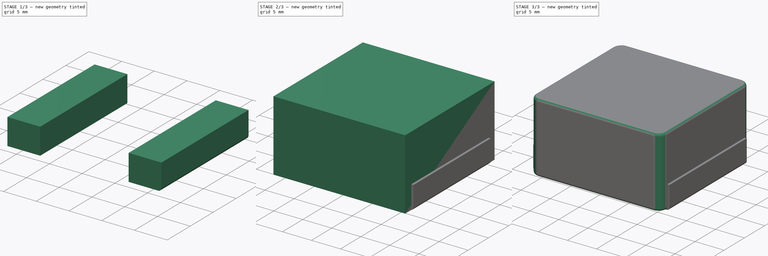
[diagram: build sequence overview — one tinted view per stage of 3, left to right]
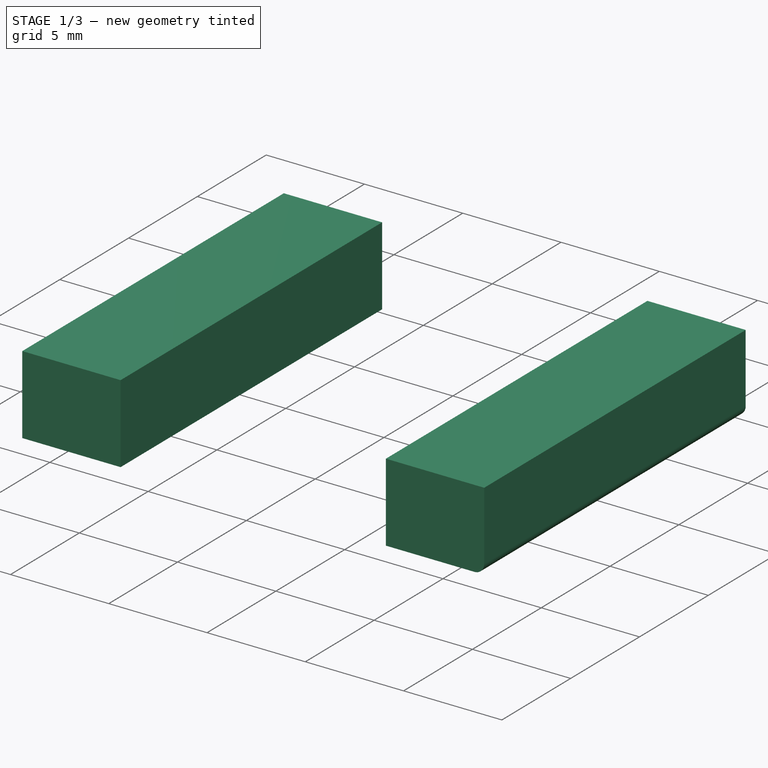
[diagram: stage 1 of 3 — iso view after this stage's code; geometry added in this stage tinted green]
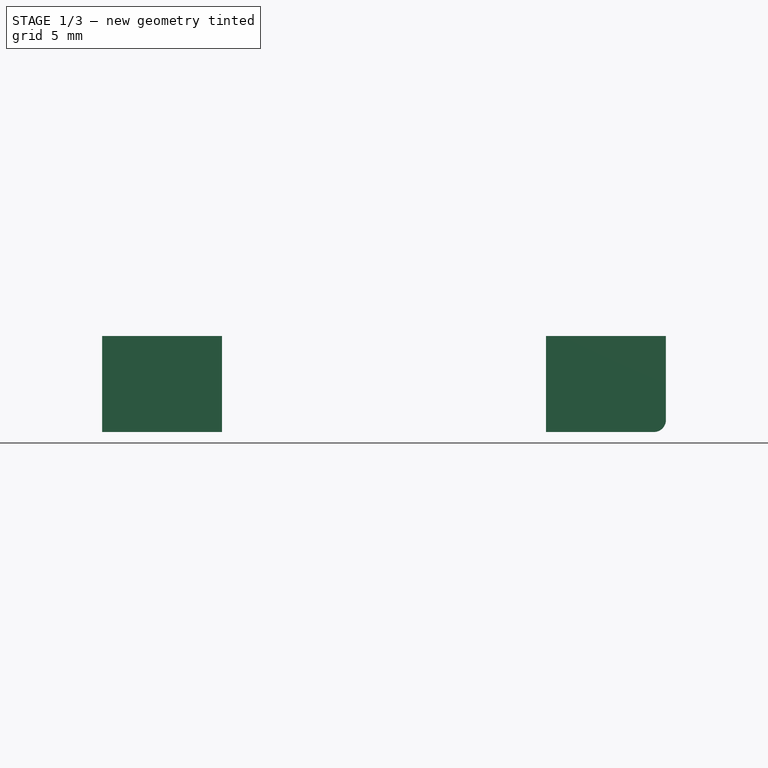
[diagram: stage 1 of 3 — front view after this stage's code; geometry added in this stage tinted green]
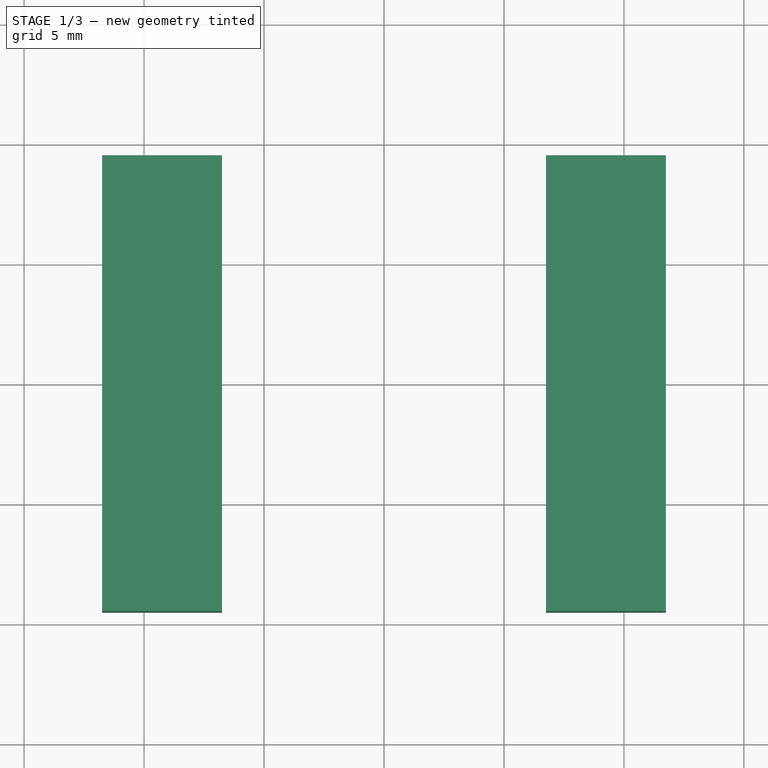
[diagram: stage 1 of 3 — top view after this stage's code; geometry added in this stage tinted green]
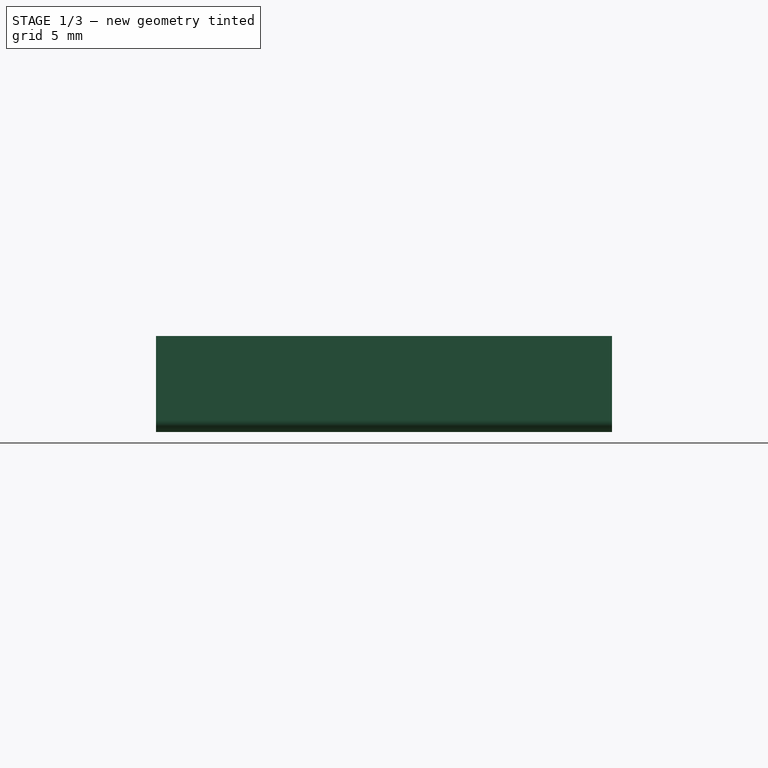
[diagram: stage 1 of 3 — right view after this stage's code; geometry added in this stage tinted green]
FCSTD DOCUMENT  (FreeCAD 0.17R13171 (Git))
Label: L_Bourns_SRP2313AA
License: All rights reserved
LicenseURL: http://en.wikipedia.org/wiki/All_rights_reserved
objects: PartDesign::Fillet×5, Sketcher::SketchObject×3, PartDesign::Pad×3, PartDesign::Body×3, Part::Feature×1
note: 18 computed .brp shape members not serialized (recipe doc carries the construction recipe); baked Part::Feature solids carry a one-line shape summary decoded from their .brp

FEATURE [Sketcher::SketchObject] Sketch001
  MapMode = 5
  Support = -> [XY_Plane001]
  sketch-geometry (4):
    g0: LineSegment StartX=-11.75 StartY=9.5 StartZ=0 EndX=-6.75 EndY=9.5 EndZ=0
    g1: LineSegment StartX=-6.75 StartY=9.5 StartZ=0 EndX=-6.75 EndY=-9.5 EndZ=0
    g2: LineSegment StartX=-6.75 StartY=-9.5 StartZ=0 EndX=-11.75 EndY=-9.5 EndZ=0
    g3: LineSegment StartX=-11.75 StartY=-9.5 StartZ=0 EndX=-11.75 EndY=9.5 EndZ=0
  constraints (12):
    c: Coincident(g0,g1)
    c: Coincident(g1,g2)
    c: Coincident(g2,g3)
    c: Coincident(g3,g0)
    c: Horizontal(g0)
    c: Horizontal(g2)
    c: Vertical(g1)
    c: Vertical(g3)
    c: Distance(g0,g-2) = 6.75
    c: Distance(g0) = 5
    c: Distance(g3) = 19
    c: Symmetric(g0,g1,g-1)
FEATURE [PartDesign::Pad] Pad001  label="Pad1"
  Length = 4
  Length2 = 100
  Profile = -> Sketch001
  Type = 0
FEATURE [Sketcher::SketchObject] Sketch002
  MapMode = 5
  Support = -> [XY_Plane002]
  sketch-geometry (4):
    g0: LineSegment StartX=6.75 StartY=9.5 StartZ=0 EndX=11.75 EndY=9.5 EndZ=0
    g1: LineSegment StartX=11.75 StartY=9.5 StartZ=0 EndX=11.75 EndY=-9.5 EndZ=0
    g2: LineSegment StartX=11.75 StartY=-9.5 StartZ=0 EndX=6.75 EndY=-9.5 EndZ=0
    g3: LineSegment StartX=6.75 StartY=-9.5 StartZ=0 EndX=6.75 EndY=9.5 EndZ=0
  constraints (12):
    c: Coincident(g0,g1)
    c: Coincident(g1,g2)
    c: Coincident(g2,g3)
    c: Coincident(g3,g0)
    c: Horizontal(g0)
    c: Horizontal(g2)
    c: Vertical(g1)
    c: Vertical(g3)
    c: Distance(g0) = 5
    c: Distance(g1) = 19
    c: Symmetric(g0,g1,g-1)
    c: DistanceX(g-2,g0) = 6.75
FEATURE [PartDesign::Pad] Pad002
  Length = 4
  Length2 = 100
  Profile = -> Sketch002
  Type = 0
FEATURE [PartDesign::Body] Body001  label="Pad_1"
  Group = -> [Sketch001,Pad001,Fillet003]
  Origin = -> Origin001
  Tip = -> Fillet003
FEATURE [PartDesign::Fillet] Fillet004
  Base = -> Pad002 [Edge6]
  BaseFeature = -> Pad002
  Radius = 0.5
FEATURE [PartDesign::Body] Body002  label="Pad_2"
  Group = -> [Sketch002,Pad002,Fillet004]
  Origin = -> Origin002
  Tip = -> Fillet004
FEATURE [Part::Feature] Shape  label="L_Bourns_SRP2313AA"
  shape: bbox 23.5 x 22.25 x 12.6 mm, 38 faces (baked)
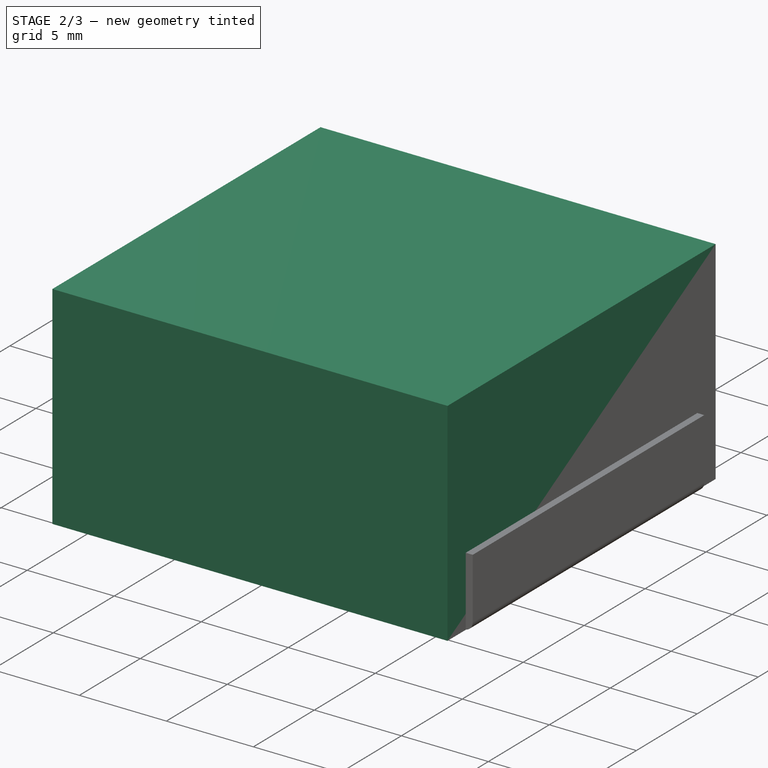
[diagram: stage 2 of 3 — iso view after this stage's code; geometry added in this stage tinted green]
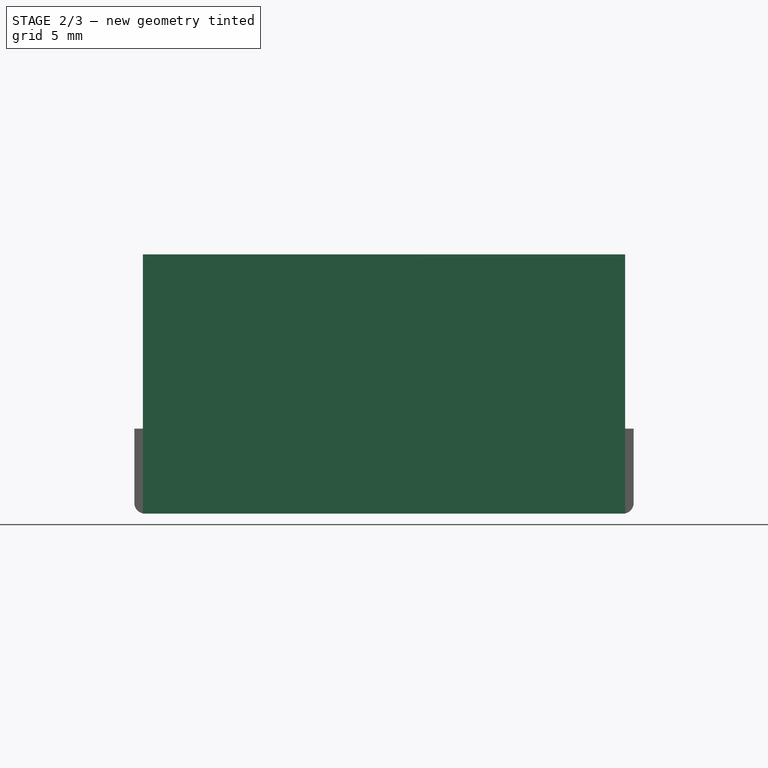
[diagram: stage 2 of 3 — front view after this stage's code; geometry added in this stage tinted green]
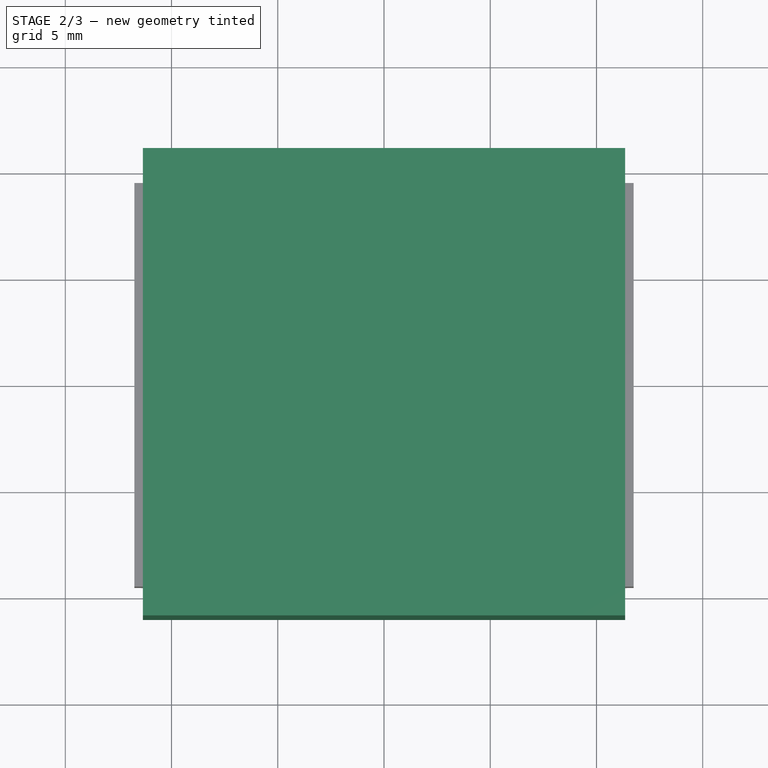
[diagram: stage 2 of 3 — top view after this stage's code; geometry added in this stage tinted green]
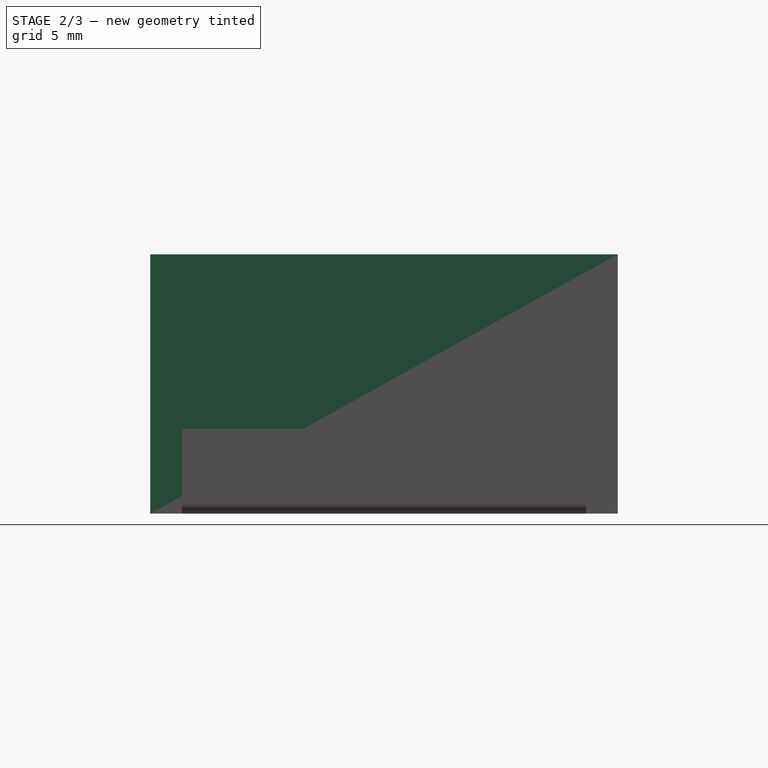
[diagram: stage 2 of 3 — right view after this stage's code; geometry added in this stage tinted green]
FEATURE [Sketcher::SketchObject] Sketch
  MapMode = 5
  Support = -> [XY_Plane]
  sketch-geometry (4):
    g0: LineSegment StartX=-11.35 StartY=11 StartZ=0 EndX=11.35 EndY=11 EndZ=0
    g1: LineSegment StartX=11.35 StartY=11 StartZ=0 EndX=11.35 EndY=-11 EndZ=0
    g2: LineSegment StartX=11.35 StartY=-11 StartZ=0 EndX=-11.35 EndY=-11 EndZ=0
    g3: LineSegment StartX=-11.35 StartY=-11 StartZ=0 EndX=-11.35 EndY=11 EndZ=0
  constraints (12):
    c: Coincident(g0,g1)
    c: Coincident(g1,g2)
    c: Coincident(g2,g3)
    c: Coincident(g3,g0)
    c: Horizontal(g0)
    c: Horizontal(g2)
    c: Vertical(g1)
    c: Vertical(g3)
    c: Distance(g0) = 22.7
    c: Symmetric(g0,g0,g-2)
    c: Symmetric(g0,g1,g-1)
    c: Distance(g1) = 22
FEATURE [PartDesign::Pad] Pad
  Length = 12.2
  Length2 = 100
  Profile = -> Sketch
  Type = 0
FEATURE [PartDesign::Body] Body
  Group = -> [Sketch,Pad,Fillet,Fillet001,Fillet002]
  Origin = -> Origin
  Placement = pos=(0,0,0.4) rot=(0,0,1;0rad)
  Tip = -> Fillet002
FEATURE [PartDesign::Fillet] Fillet003
  Base = -> Pad001 [Edge11]
  BaseFeature = -> Pad001
  Radius = 0.5
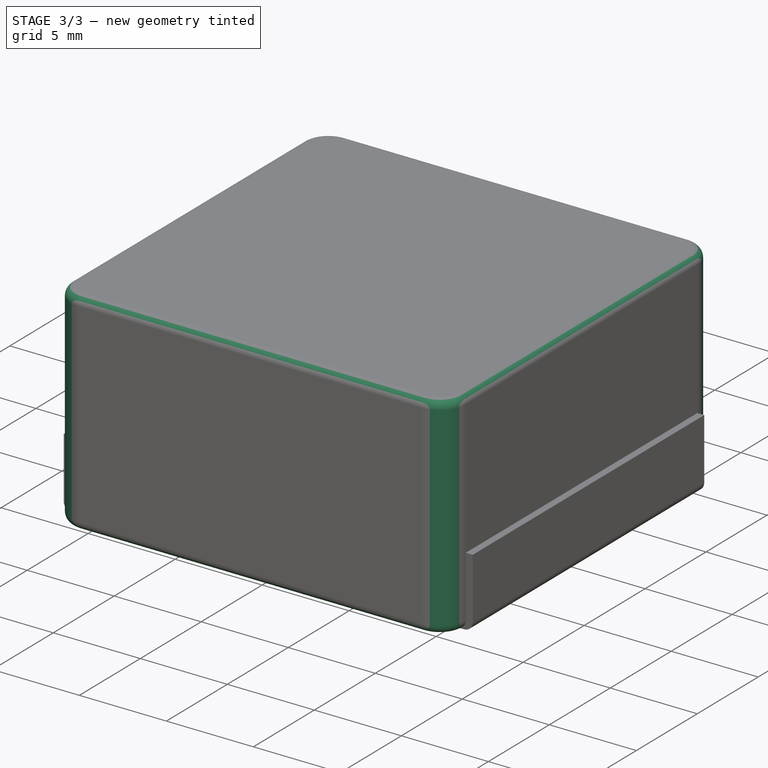
[diagram: stage 3 of 3 — iso view after this stage's code; geometry added in this stage tinted green]
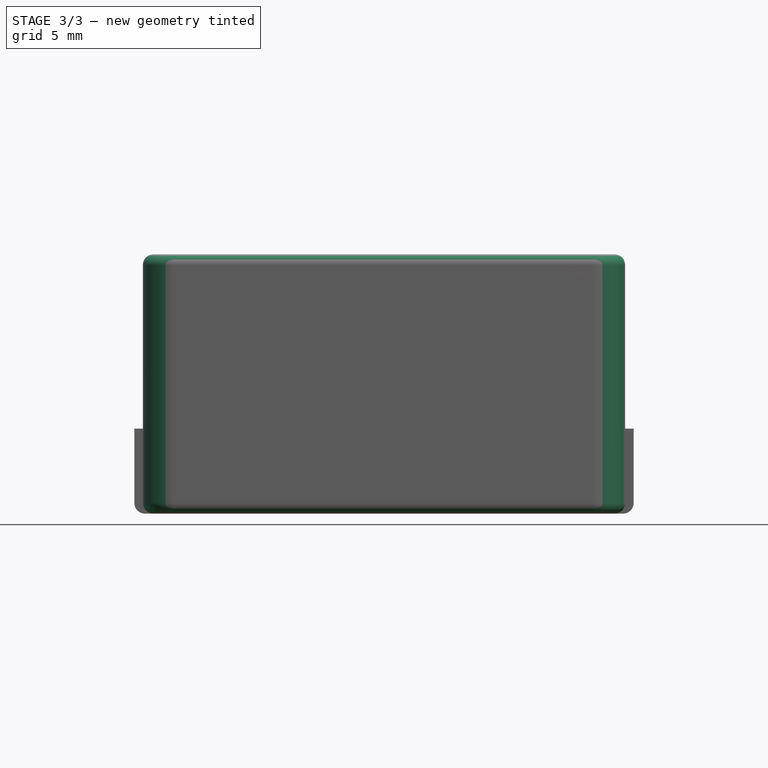
[diagram: stage 3 of 3 — front view after this stage's code; geometry added in this stage tinted green]
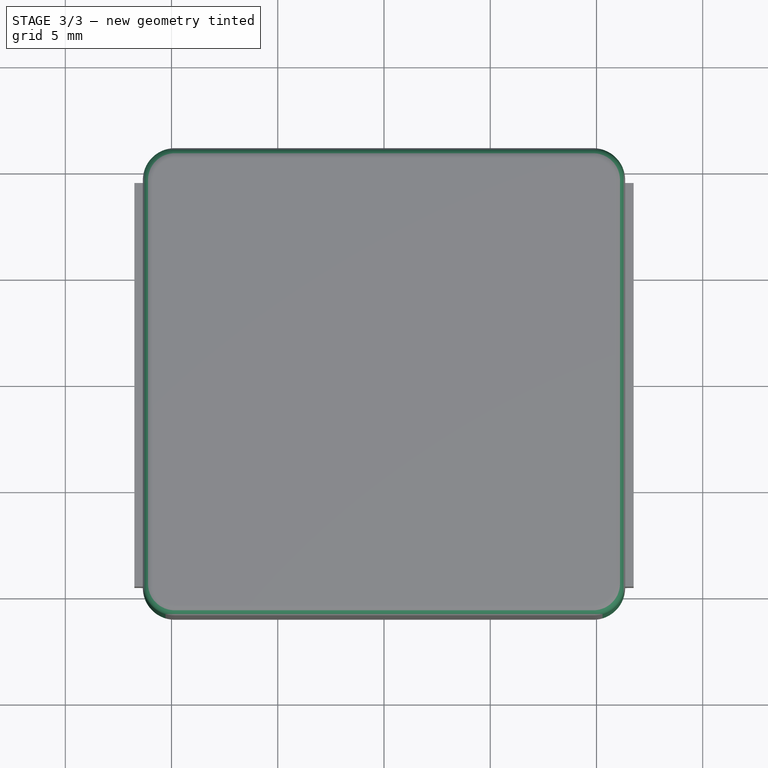
[diagram: stage 3 of 3 — top view after this stage's code; geometry added in this stage tinted green]
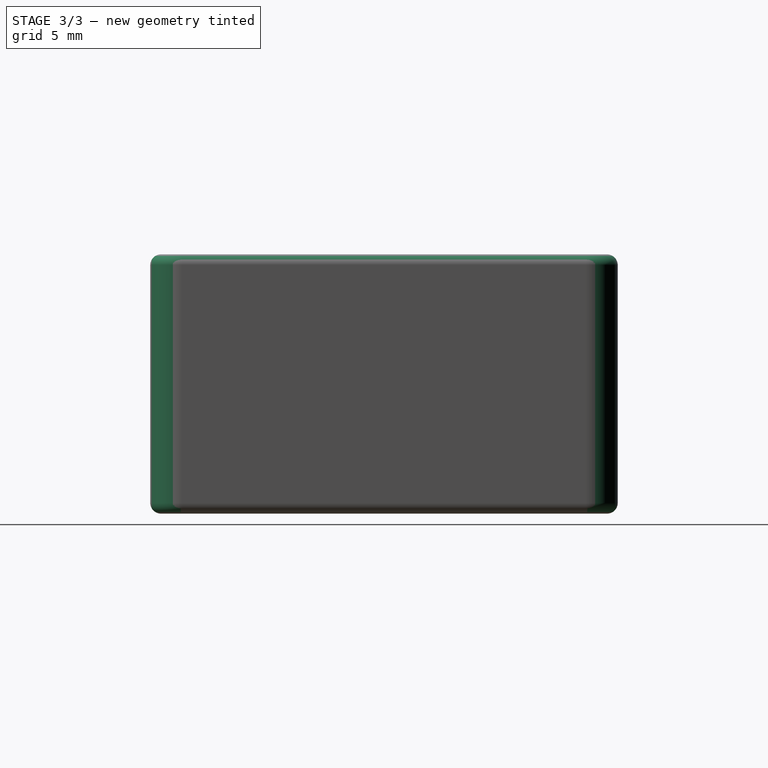
[diagram: stage 3 of 3 — right view after this stage's code; geometry added in this stage tinted green]
FEATURE [PartDesign::Fillet] Fillet
  Base = -> Pad [Edge5,Edge8,Edge2,Edge1]
  BaseFeature = -> Pad
  Radius = 1.5
FEATURE [PartDesign::Fillet] Fillet001
  Base = -> Fillet [Edge20]
  BaseFeature = -> Fillet
  Radius = 0.5
FEATURE [PartDesign::Fillet] Fillet002
  Base = -> Fillet001 [Edge3]
  BaseFeature = -> Fillet001
  Radius = 0.5
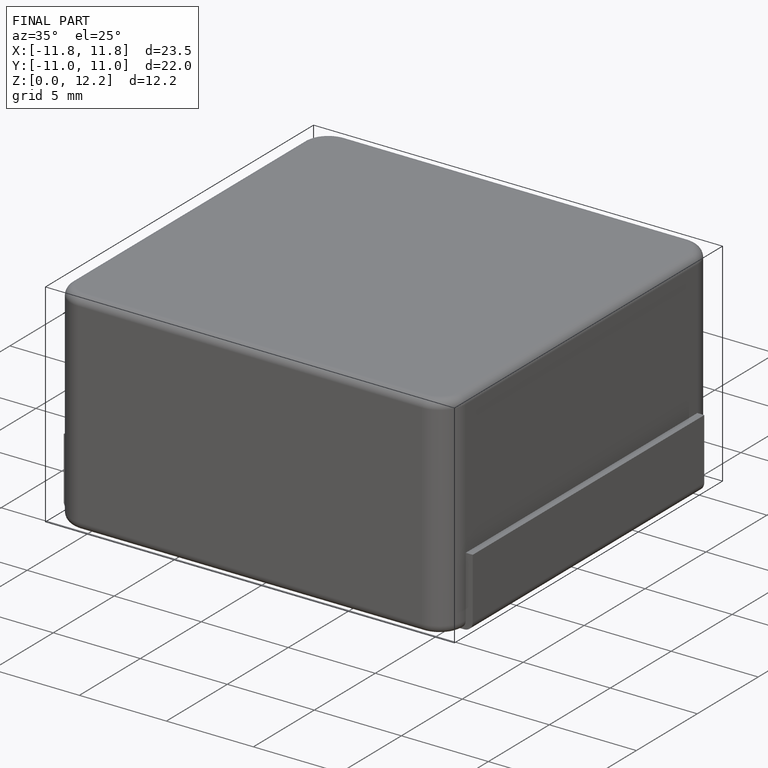
[diagram: finished part — iso view with bounding-box wireframe]
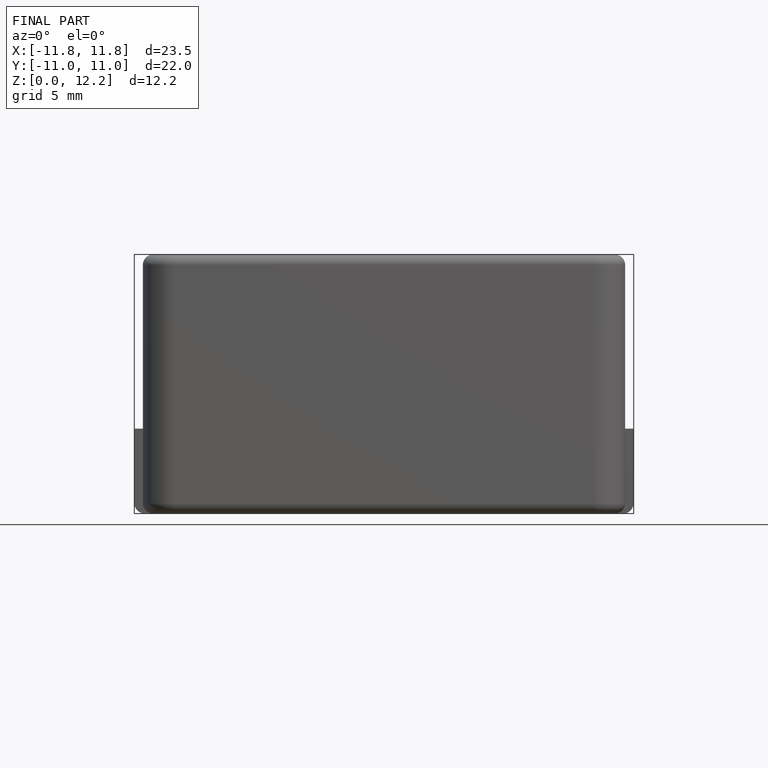
[diagram: finished part — front view with bounding-box wireframe]
